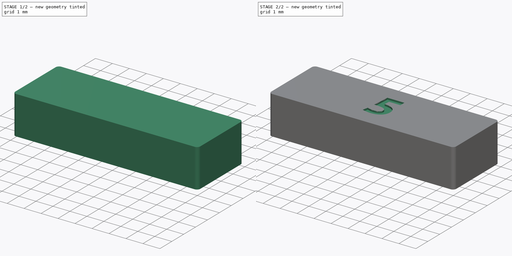
[diagram: build sequence overview — one tinted view per stage of 2, left to right]
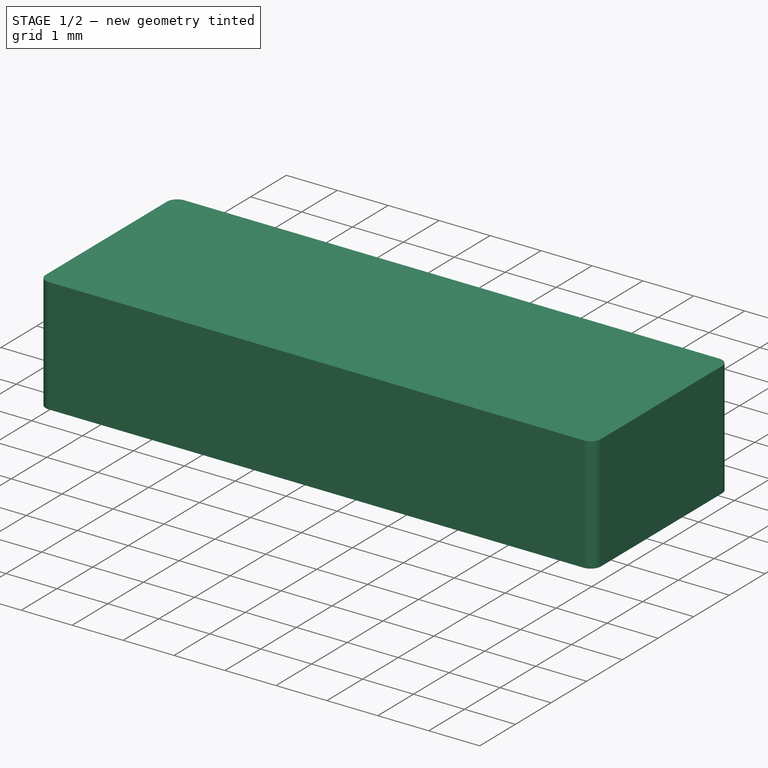
[diagram: stage 1 of 2 — iso view after this stage's code; geometry added in this stage tinted green]
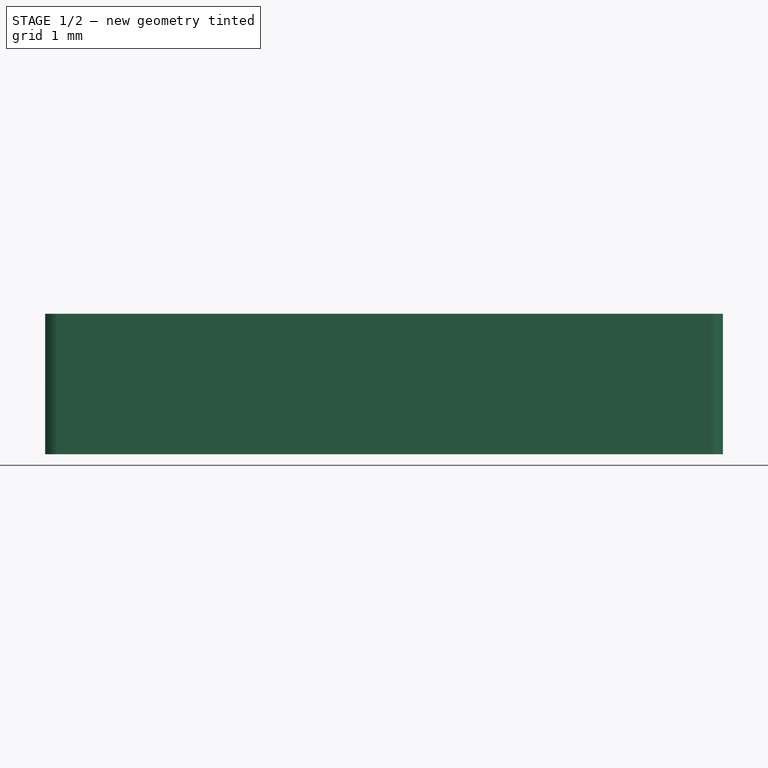
[diagram: stage 1 of 2 — front view after this stage's code; geometry added in this stage tinted green]
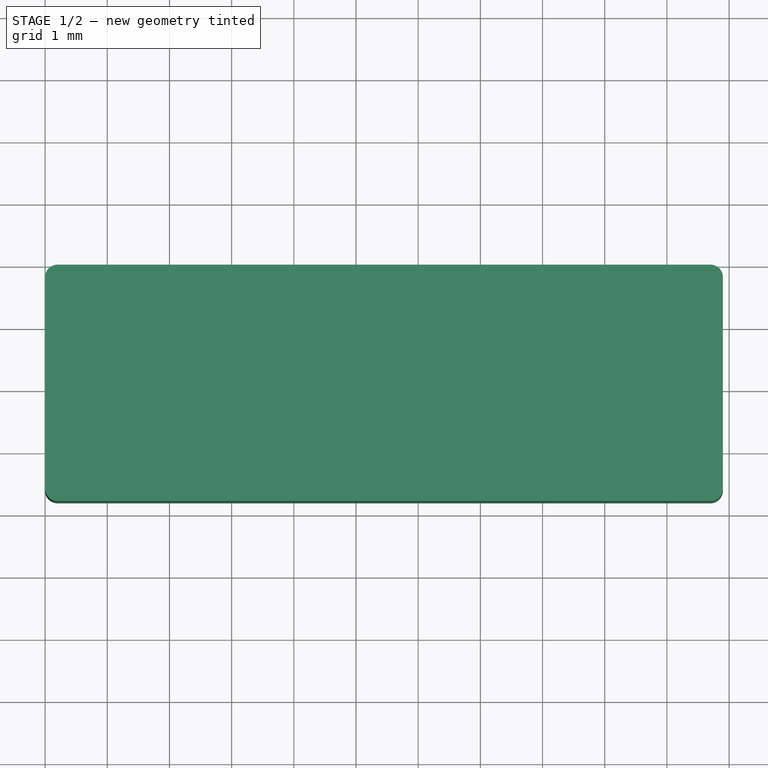
[diagram: stage 1 of 2 — top view after this stage's code; geometry added in this stage tinted green]
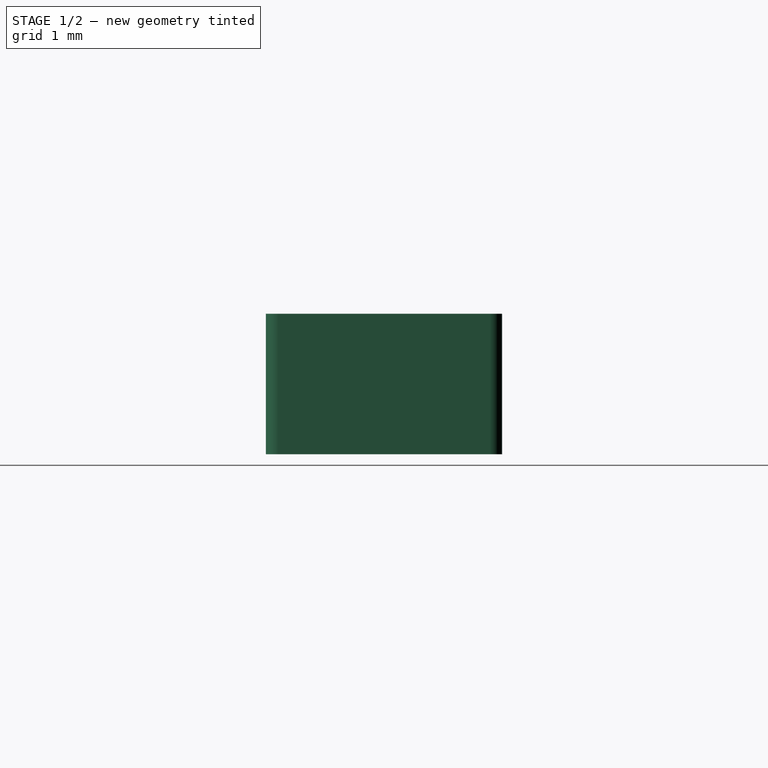
[diagram: stage 1 of 2 — right view after this stage's code; geometry added in this stage tinted green]
FCSTD DOCUMENT  (FreeCAD 0.18.4R)
Label: 0891005_NXS
License: All rights reserved
LicenseURL: http://en.wikipedia.org/wiki/All_rights_reserved
objects: Sketcher::SketchObject×1, PartDesign::Pad×1, PartDesign::Fillet×1, Part::Part2DObjectPython×1, PartDesign::Pocket×1, PartDesign::Body×1
note: 8 computed .brp shape members not serialized (recipe doc carries the construction recipe); baked Part::Feature solids carry a one-line shape summary decoded from their .brp

FEATURE [Sketcher::SketchObject] Sketch
  MapMode = 5
  Support = -> [XY_Plane]
  sketch-geometry (4):
    g0: LineSegment StartX=0 StartY=0 StartZ=0 EndX=10.9 EndY=0 EndZ=0
    g1: LineSegment StartX=10.9 StartY=0 StartZ=0 EndX=10.9 EndY=-3.8 EndZ=0
    g2: LineSegment StartX=10.9 StartY=-3.8 StartZ=0 EndX=0 EndY=-3.8 EndZ=0
    g3: LineSegment StartX=0 StartY=-3.8 StartZ=0 EndX=0 EndY=0 EndZ=0
  constraints (11):
    c: Coincident(g0,g1)
    c: Coincident(g1,g2)
    c: Coincident(g2,g3)
    c: Coincident(g3,g0)
    c: Horizontal(g0)
    c: Horizontal(g2)
    c: Vertical(g1)
    c: Vertical(g3)
    c: DistanceX(g0,g0) = 10.9
    c: DistanceY(g1,g0) = 3.8
    c: Coincident(g0,g-1)
FEATURE [PartDesign::Pad] Pad
  Length = 2.26
  Length2 = 100
  Profile = -> Sketch
  Type = 0
FEATURE [PartDesign::Fillet] Fillet
  Base = -> Pad [Edge5,Edge2,Edge1,Edge8]
  BaseFeature = -> Pad
  Radius = 0.2
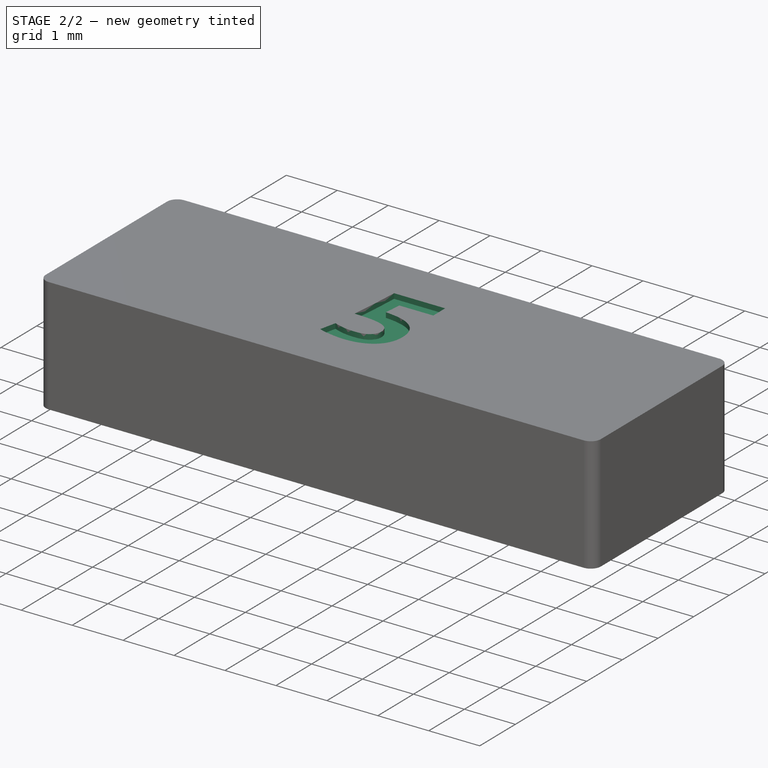
[diagram: stage 2 of 2 — iso view after this stage's code; geometry added in this stage tinted green]
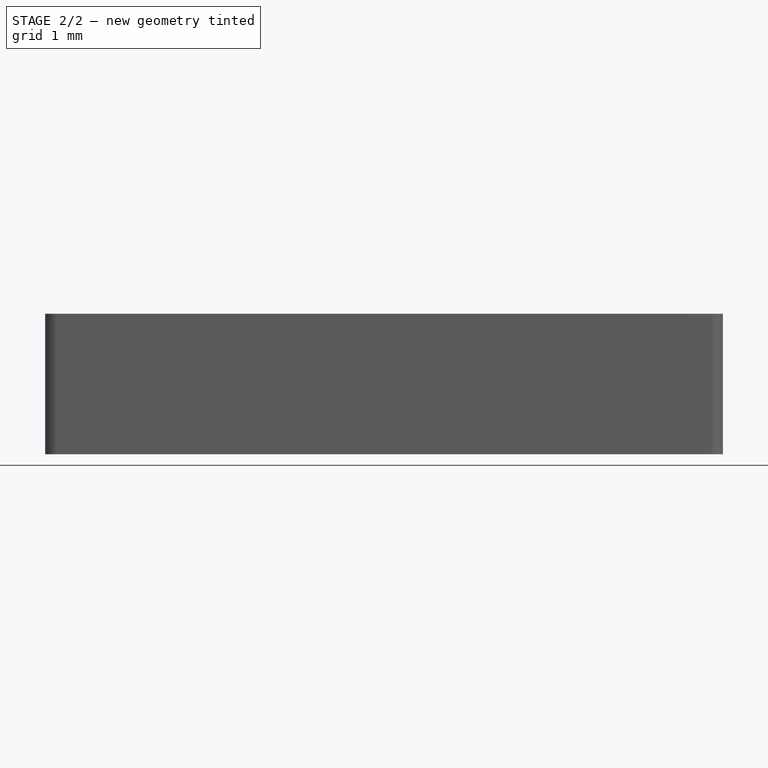
[diagram: stage 2 of 2 — front view after this stage's code; geometry added in this stage tinted green]
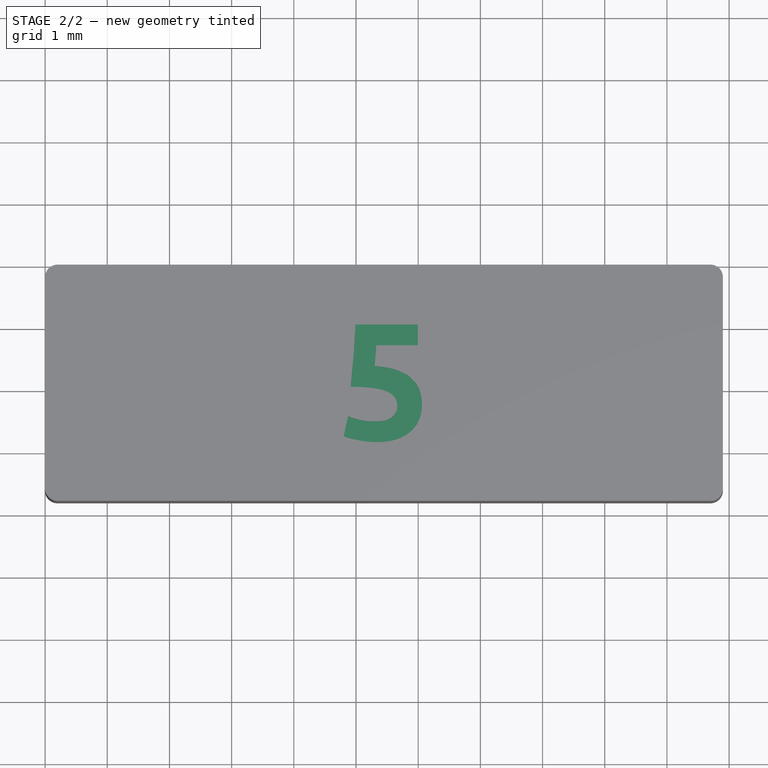
[diagram: stage 2 of 2 — top view after this stage's code; geometry added in this stage tinted green]
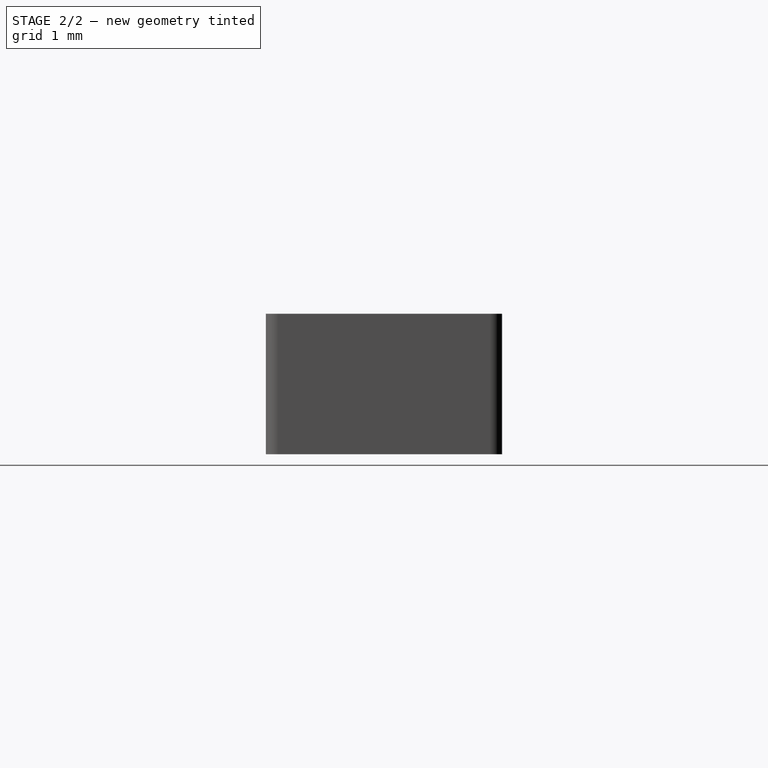
[diagram: stage 2 of 2 — right view after this stage's code; geometry added in this stage tinted green]
FEATURE [Part::Part2DObjectPython] ShapeString  label="5"  # Draft 2D object (typed FeaturePython)
  AttachmentOffset = pos=(4.7,-2.8,0) rot=(0,0,1;0rad)
  FontFile = <path>
  MapMode = 5
  Placement = pos=(4.7,-2.8,2.26) rot=(0,0,1;0rad)
  Size = 1
  String = 5
  Support = -> [Fillet]
  Tracking = 0
FEATURE [PartDesign::Pocket] Pocket
  BaseFeature = -> Fillet
  Length = 0.1
  Length2 = 100
  Profile = -> ShapeString
  Type = 0
FEATURE [PartDesign::Body] Body  label="Fuse"
  Group = -> [Sketch,Pad,Fillet,ShapeString,Pocket]
  Origin = -> Origin
  Tip = -> Pocket
note: 1 file-system path scrubbed to <path> (originals preserved in the JSON sidecar)
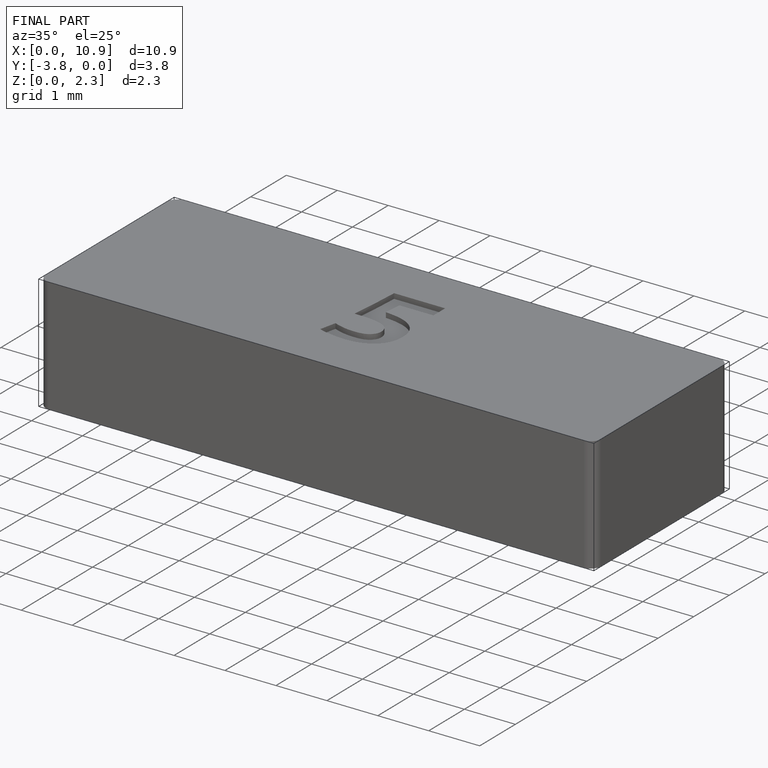
[diagram: finished part — iso view with bounding-box wireframe]
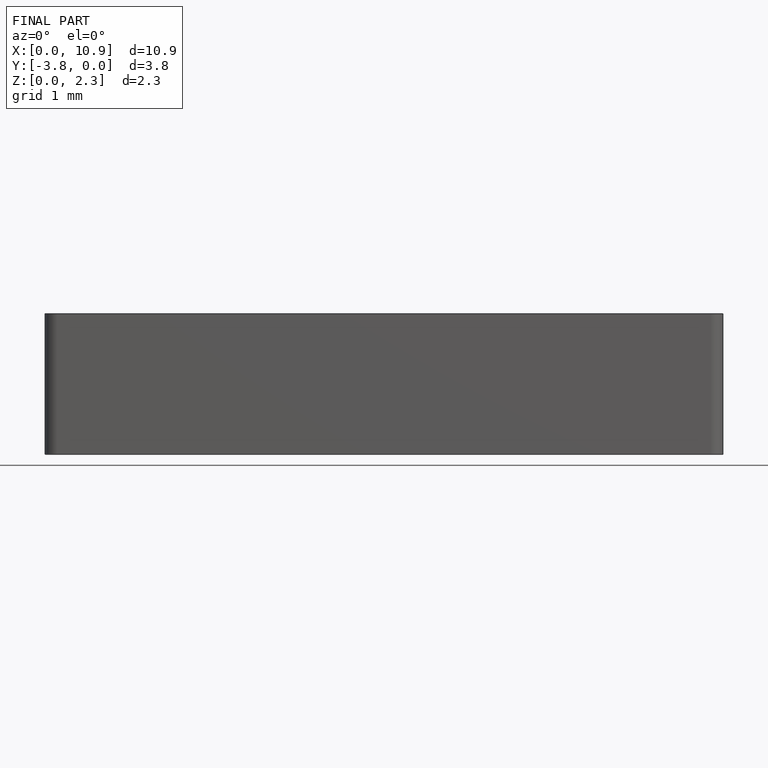
[diagram: finished part — front view with bounding-box wireframe]
